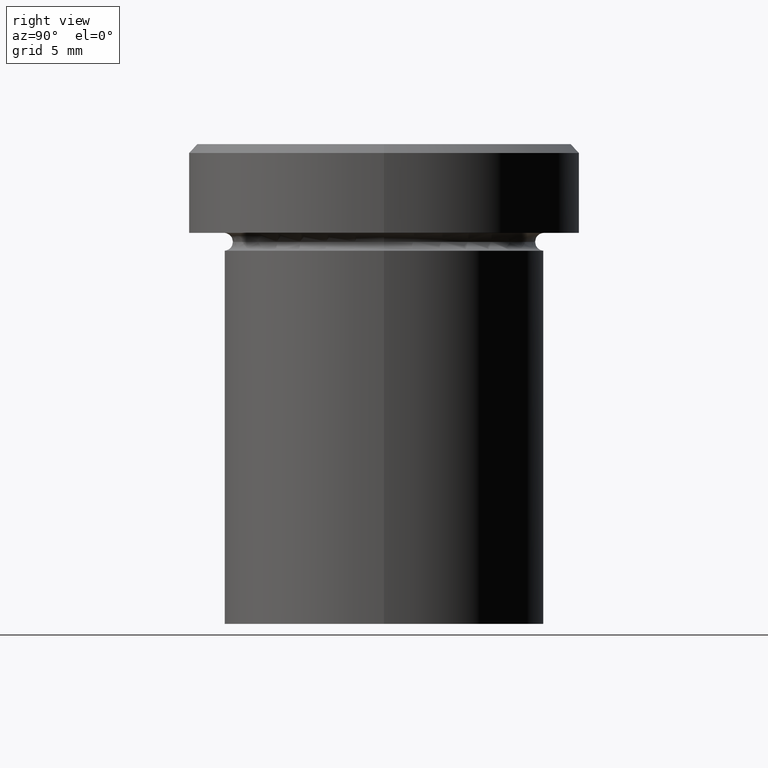
[diagram: clean part render]
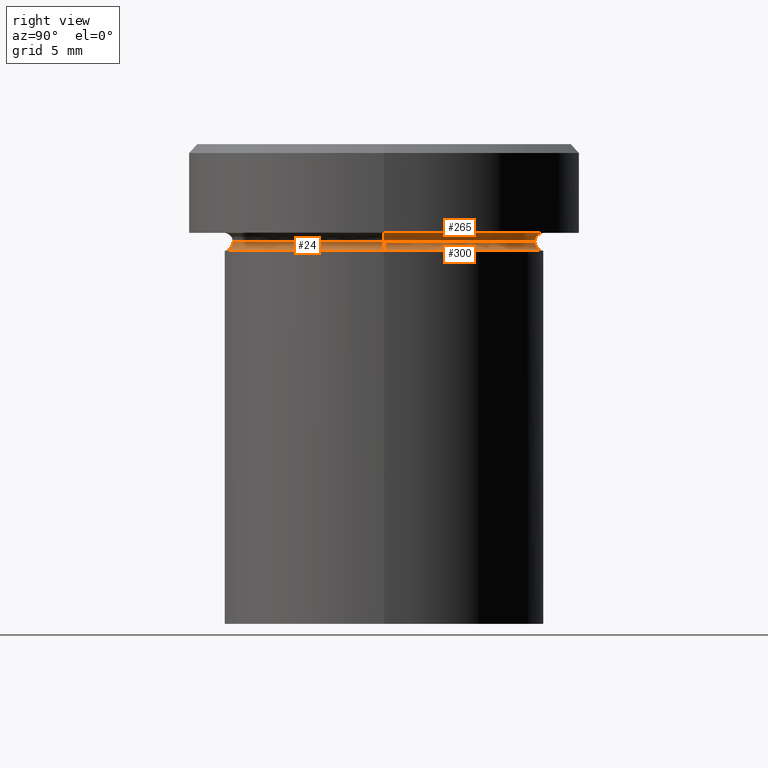
[diagram: same view with one multi-face feature highlighted, each face labeled with its STEP entity id]
A machine part, right view. The highlighted faces form ONE feature: a constant-radius fillet chain: 3 tangent blend faces with common blend radius 0.5 mm. The faces share edges in the B-rep.
Their STEP definitions:
[1] entity #24 (Torus):
#1 = VERTEX_POINT ( 'NONE', #386 ) ;
#19 = AXIS2_PLACEMENT_3D ( 'NONE', #352, #69, #257 ) ;
#22 = DIRECTION ( 'NONE',  ( -0.000000000000000000, -0.000000000000000000, 1.000000000000000000 ) ) ;
#24 = ADVANCED_FACE ( 'NONE', ( #46 ), #397, .F. ) ;
#31 = ORIENTED_EDGE ( 'NONE', *, *, #191, .T. ) ;
#34 = EDGE_LOOP ( 'NONE', ( #202, #218, #31, #356 ) ) ;
#38 = CARTESIAN_POINT ( 'NONE',  ( 8.499999999999998224, 0.000000000000000000, -5.500000000000000000 ) ) ;
#46 = FACE_OUTER_BOUND ( 'NONE', #34, .T. ) ;
#53 = VERTEX_POINT ( 'NONE', #320 ) ;
#56 = DIRECTION ( 'NONE',  ( -0.000000000000000000, -0.000000000000000000, 1.000000000000000000 ) ) ;
#61 = VERTEX_POINT ( 'NONE', #38 ) ;
#69 = DIRECTION ( 'NONE',  ( 0.000000000000000000, -1.000000000000000000, 0.000000000000000000 ) ) ;
#84 = DIRECTION ( 'NONE',  ( 1.000000000000000000, 0.000000000000000000, 0.000000000000000000 ) ) ;
#110 = CIRCLE ( 'NONE', #19, 0.5000000000000004441 ) ;
#121 = CARTESIAN_POINT ( 'NONE',  ( 0.000000000000000000, 0.000000000000000000, -6.000000000000000000 ) ) ;
#143 = CIRCLE ( 'NONE', #205, 8.499999999999998224 ) ;
#146 = EDGE_CURVE ( 'NONE', #1, #253, #369, .T. ) ;
#152 = DIRECTION ( 'NONE',  ( 1.000000000000000000, 0.000000000000000000, 0.000000000000000000 ) ) ;
#153 = AXIS2_PLACEMENT_3D ( 'NONE', #390, #358, #84 ) ;
#157 = DIRECTION ( 'NONE',  ( -1.000000000000000000, 1.224646799147353454E-16, 0.000000000000000000 ) ) ;
#176 = CIRCLE ( 'NONE', #315, 9.000000000000000000 ) ;
#181 = CARTESIAN_POINT ( 'NONE',  ( 0.000000000000000000, 0.000000000000000000, -5.500000000000000000 ) ) ;
#187 = CARTESIAN_POINT ( 'NONE',  ( -9.000000000000000000, 1.102182119232617714E-15, -5.500000000000000000 ) ) ;
#191 = EDGE_CURVE ( 'NONE', #253, #53, #176, .T. ) ;
#202 = ORIENTED_EDGE ( 'NONE', *, *, #249, .F. ) ;
#205 = AXIS2_PLACEMENT_3D ( 'NONE', #181, #22, #152 ) ;
#218 = ORIENTED_EDGE ( 'NONE', *, *, #146, .T. ) ;
#247 = DIRECTION ( 'NONE',  ( 1.000000000000000000, 0.000000000000000000, 0.000000000000000000 ) ) ;
#249 = EDGE_CURVE ( 'NONE', #1, #61, #143, .T. ) ;
#253 = VERTEX_POINT ( 'NONE', #338 ) ;
#257 = DIRECTION ( 'NONE',  ( 0.000000000000000000, 0.000000000000000000, -1.000000000000000000 ) ) ;
#308 = DIRECTION ( 'NONE',  ( 1.224646799147353207E-16, 1.000000000000000000, 0.000000000000000000 ) ) ;
#315 = AXIS2_PLACEMENT_3D ( 'NONE', #121, #56, #247 ) ;
#320 = CARTESIAN_POINT ( 'NONE',  ( 9.000000000000000000, 0.000000000000000000, -6.000000000000000000 ) ) ;
#338 = CARTESIAN_POINT ( 'NONE',  ( -9.000000000000000000, 1.102182119232617714E-15, -6.000000000000000000 ) ) ;
#349 = EDGE_CURVE ( 'NONE', #61, #53, #110, .T. ) ;
#352 = CARTESIAN_POINT ( 'NONE',  ( 9.000000000000000000, 0.000000000000000000, -5.500000000000000000 ) ) ;
#356 = ORIENTED_EDGE ( 'NONE', *, *, #349, .F. ) ;
#358 = DIRECTION ( 'NONE',  ( -0.000000000000000000, -0.000000000000000000, 1.000000000000000000 ) ) ;
#369 = CIRCLE ( 'NONE', #400, 0.5000000000000004441 ) ;
#386 = CARTESIAN_POINT ( 'NONE',  ( -8.499999999999998224, 1.071565949253933927E-15, -5.500000000000000000 ) ) ;
#390 = CARTESIAN_POINT ( 'NONE',  ( 0.000000000000000000, 0.000000000000000000, -5.500000000000000000 ) ) ;
#397 = TOROIDAL_SURFACE ( 'NONE', #153, 9.000000000000000000, 0.5000000000000000000 ) ;
#400 = AXIS2_PLACEMENT_3D ( 'NONE', #187, #308, #157 ) ;
[2] entity #300 (Torus):
#1 = VERTEX_POINT ( 'NONE', #386 ) ;
#19 = AXIS2_PLACEMENT_3D ( 'NONE', #352, #69, #257 ) ;
#36 = ORIENTED_EDGE ( 'NONE', *, *, #82, .T. ) ;
#38 = CARTESIAN_POINT ( 'NONE',  ( 8.499999999999998224, 0.000000000000000000, -5.500000000000000000 ) ) ;
#53 = VERTEX_POINT ( 'NONE', #320 ) ;
#61 = VERTEX_POINT ( 'NONE', #38 ) ;
#69 = DIRECTION ( 'NONE',  ( 0.000000000000000000, -1.000000000000000000, 0.000000000000000000 ) ) ;
#82 = EDGE_CURVE ( 'NONE', #53, #253, #178, .T. ) ;
#86 = CIRCLE ( 'NONE', #101, 8.499999999999998224 ) ;
#101 = AXIS2_PLACEMENT_3D ( 'NONE', #344, #398, #340 ) ;
#108 = ORIENTED_EDGE ( 'NONE', *, *, #113, .F. ) ;
#110 = CIRCLE ( 'NONE', #19, 0.5000000000000004441 ) ;
#113 = EDGE_CURVE ( 'NONE', #61, #1, #86, .T. ) ;
#123 = CARTESIAN_POINT ( 'NONE',  ( 0.000000000000000000, 0.000000000000000000, -5.500000000000000000 ) ) ;
#132 = DIRECTION ( 'NONE',  ( -0.000000000000000000, -0.000000000000000000, 1.000000000000000000 ) ) ;
#146 = EDGE_CURVE ( 'NONE', #1, #253, #369, .T. ) ;
#157 = DIRECTION ( 'NONE',  ( -1.000000000000000000, 1.224646799147353454E-16, 0.000000000000000000 ) ) ;
#163 = ORIENTED_EDGE ( 'NONE', *, *, #349, .T. ) ;
#178 = CIRCLE ( 'NONE', #374, 9.000000000000000000 ) ;
#187 = CARTESIAN_POINT ( 'NONE',  ( -9.000000000000000000, 1.102182119232617714E-15, -5.500000000000000000 ) ) ;
#212 = DIRECTION ( 'NONE',  ( 1.000000000000000000, 0.000000000000000000, 0.000000000000000000 ) ) ;
#252 = ORIENTED_EDGE ( 'NONE', *, *, #146, .F. ) ;
#253 = VERTEX_POINT ( 'NONE', #338 ) ;
#257 = DIRECTION ( 'NONE',  ( 0.000000000000000000, 0.000000000000000000, -1.000000000000000000 ) ) ;
#300 = ADVANCED_FACE ( 'NONE', ( #377 ), #375, .F. ) ;
#308 = DIRECTION ( 'NONE',  ( 1.224646799147353207E-16, 1.000000000000000000, 0.000000000000000000 ) ) ;
#311 = DIRECTION ( 'NONE',  ( 1.000000000000000000, 0.000000000000000000, 0.000000000000000000 ) ) ;
#320 = CARTESIAN_POINT ( 'NONE',  ( 9.000000000000000000, 0.000000000000000000, -6.000000000000000000 ) ) ;
#338 = CARTESIAN_POINT ( 'NONE',  ( -9.000000000000000000, 1.102182119232617714E-15, -6.000000000000000000 ) ) ;
#340 = DIRECTION ( 'NONE',  ( 1.000000000000000000, 0.000000000000000000, 0.000000000000000000 ) ) ;
#344 = CARTESIAN_POINT ( 'NONE',  ( 0.000000000000000000, 0.000000000000000000, -5.500000000000000000 ) ) ;
#349 = EDGE_CURVE ( 'NONE', #61, #53, #110, .T. ) ;
#352 = CARTESIAN_POINT ( 'NONE',  ( 9.000000000000000000, 0.000000000000000000, -5.500000000000000000 ) ) ;
#365 = EDGE_LOOP ( 'NONE', ( #252, #108, #163, #36 ) ) ;
#369 = CIRCLE ( 'NONE', #400, 0.5000000000000004441 ) ;
#371 = CARTESIAN_POINT ( 'NONE',  ( 0.000000000000000000, 0.000000000000000000, -6.000000000000000000 ) ) ;
#374 = AXIS2_PLACEMENT_3D ( 'NONE', #371, #401, #212 ) ;
#375 = TOROIDAL_SURFACE ( 'NONE', #406, 9.000000000000000000, 0.5000000000000000000 ) ;
#377 = FACE_OUTER_BOUND ( 'NONE', #365, .T. ) ;
#386 = CARTESIAN_POINT ( 'NONE',  ( -8.499999999999998224, 1.071565949253933927E-15, -5.500000000000000000 ) ) ;
#398 = DIRECTION ( 'NONE',  ( -0.000000000000000000, -0.000000000000000000, 1.000000000000000000 ) ) ;
#400 = AXIS2_PLACEMENT_3D ( 'NONE', #187, #308, #157 ) ;
#401 = DIRECTION ( 'NONE',  ( -0.000000000000000000, -0.000000000000000000, 1.000000000000000000 ) ) ;
#406 = AXIS2_PLACEMENT_3D ( 'NONE', #123, #132, #311 ) ;
[3] entity #265 (Torus):
#1 = VERTEX_POINT ( 'NONE', #386 ) ;
#5 = CARTESIAN_POINT ( 'NONE',  ( 0.000000000000000000, 0.000000000000000000, -5.000000000000000000 ) ) ;
#38 = CARTESIAN_POINT ( 'NONE',  ( 8.499999999999998224, 0.000000000000000000, -5.500000000000000000 ) ) ;
#57 = DIRECTION ( 'NONE',  ( 0.000000000000000000, 0.000000000000000000, -1.000000000000000000 ) ) ;
#61 = VERTEX_POINT ( 'NONE', #38 ) ;
#63 = DIRECTION ( 'NONE',  ( -1.000000000000000000, -1.224646799147353454E-16, 0.000000000000000000 ) ) ;
#65 = CARTESIAN_POINT ( 'NONE',  ( 9.000000000000000000, 1.102182119232617714E-15, -4.999999999999999112 ) ) ;
#66 = VERTEX_POINT ( 'NONE', #276 ) ;
#71 = EDGE_CURVE ( 'NONE', #61, #314, #72, .T. ) ;
#72 = CIRCLE ( 'NONE', #298, 0.5000000000000004441 ) ;
#86 = CIRCLE ( 'NONE', #101, 8.499999999999998224 ) ;
#88 = CARTESIAN_POINT ( 'NONE',  ( 9.000000000000000000, 1.102182119232617714E-15, -5.500000000000000000 ) ) ;
#96 = AXIS2_PLACEMENT_3D ( 'NONE', #160, #127, #282 ) ;
#101 = AXIS2_PLACEMENT_3D ( 'NONE', #344, #398, #340 ) ;
#113 = EDGE_CURVE ( 'NONE', #61, #1, #86, .T. ) ;
#116 = DIRECTION ( 'NONE',  ( -1.224646799147353207E-16, 1.000000000000000000, 0.000000000000000000 ) ) ;
#118 = CARTESIAN_POINT ( 'NONE',  ( 0.000000000000000000, 0.000000000000000000, -5.500000000000000000 ) ) ;
#127 = DIRECTION ( 'NONE',  ( -0.000000000000000000, -1.000000000000000000, -0.000000000000000000 ) ) ;
#160 = CARTESIAN_POINT ( 'NONE',  ( -9.000000000000000000, 0.000000000000000000, -5.500000000000000000 ) ) ;
#180 = AXIS2_PLACEMENT_3D ( 'NONE', #118, #57, #244 ) ;
#192 = EDGE_LOOP ( 'NONE', ( #407, #195, #350, #268 ) ) ;
#195 = ORIENTED_EDGE ( 'NONE', *, *, #113, .T. ) ;
#228 = DIRECTION ( 'NONE',  ( -1.000000000000000000, 0.000000000000000000, 0.000000000000000000 ) ) ;
#244 = DIRECTION ( 'NONE',  ( -1.000000000000000000, 0.000000000000000000, 0.000000000000000000 ) ) ;
#250 = CIRCLE ( 'NONE', #96, 0.5000000000000004441 ) ;
#251 = DIRECTION ( 'NONE',  ( -0.000000000000000000, -0.000000000000000000, 1.000000000000000000 ) ) ;
#256 = CIRCLE ( 'NONE', #316, 9.000000000000000000 ) ;
#265 = ADVANCED_FACE ( 'NONE', ( #368 ), #357, .F. ) ;
#268 = ORIENTED_EDGE ( 'NONE', *, *, #408, .F. ) ;
#276 = CARTESIAN_POINT ( 'NONE',  ( -9.000000000000000000, 0.000000000000000000, -4.999999999999999112 ) ) ;
#282 = DIRECTION ( 'NONE',  ( 0.000000000000000000, 0.000000000000000000, -1.000000000000000000 ) ) ;
#298 = AXIS2_PLACEMENT_3D ( 'NONE', #88, #116, #63 ) ;
#314 = VERTEX_POINT ( 'NONE', #65 ) ;
#316 = AXIS2_PLACEMENT_3D ( 'NONE', #5, #251, #228 ) ;
#340 = DIRECTION ( 'NONE',  ( 1.000000000000000000, 0.000000000000000000, 0.000000000000000000 ) ) ;
#344 = CARTESIAN_POINT ( 'NONE',  ( 0.000000000000000000, 0.000000000000000000, -5.500000000000000000 ) ) ;
#350 = ORIENTED_EDGE ( 'NONE', *, *, #402, .T. ) ;
#357 = TOROIDAL_SURFACE ( 'NONE', #180, 9.000000000000000000, 0.5000000000000000000 ) ;
#368 = FACE_OUTER_BOUND ( 'NONE', #192, .T. ) ;
#386 = CARTESIAN_POINT ( 'NONE',  ( -8.499999999999998224, 1.071565949253933927E-15, -5.500000000000000000 ) ) ;
#398 = DIRECTION ( 'NONE',  ( -0.000000000000000000, -0.000000000000000000, 1.000000000000000000 ) ) ;
#402 = EDGE_CURVE ( 'NONE', #1, #66, #250, .T. ) ;
#407 = ORIENTED_EDGE ( 'NONE', *, *, #71, .F. ) ;
#408 = EDGE_CURVE ( 'NONE', #314, #66, #256, .T. ) ;